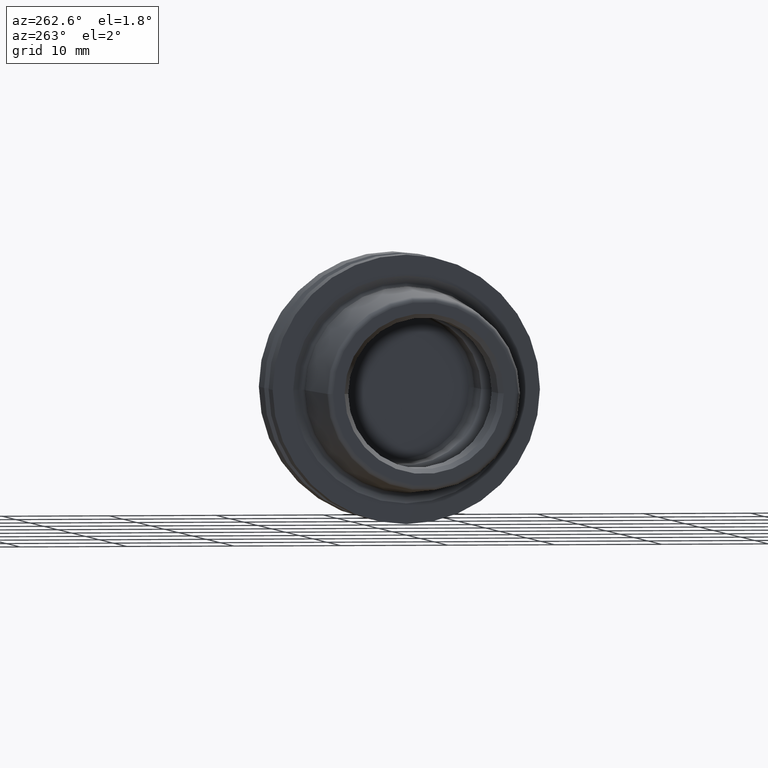
[diagram: clean part render]
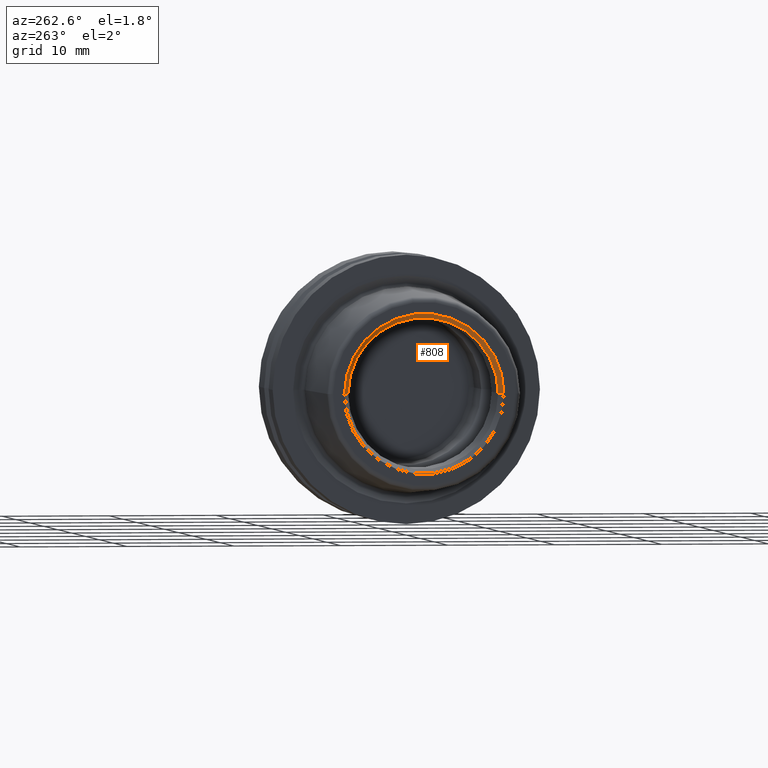
[diagram: same view with one face highlighted and labeled with its STEP entity id]
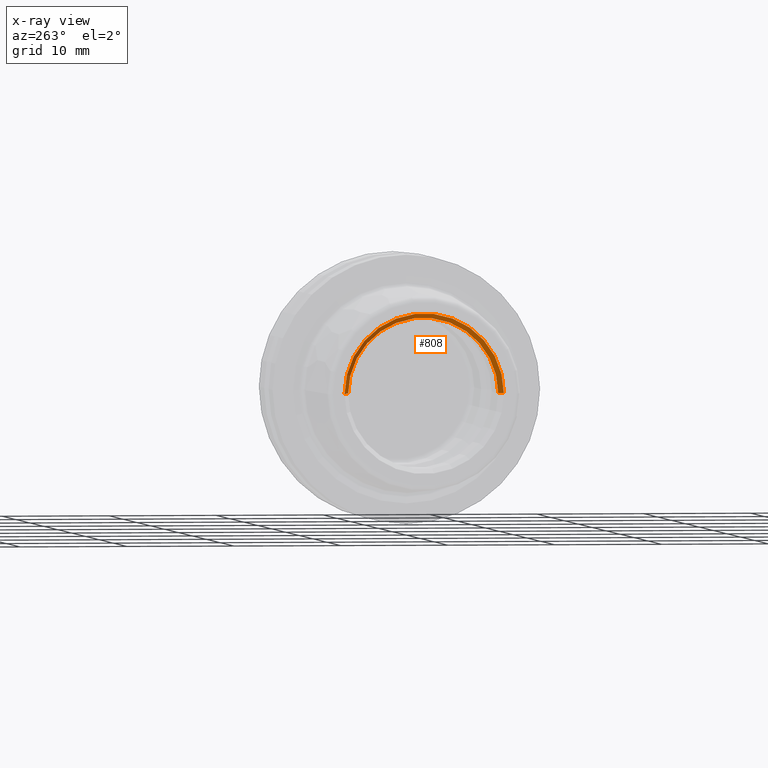
[diagram: x-ray of the same camera — body ghosted, the highlighted face saturated]
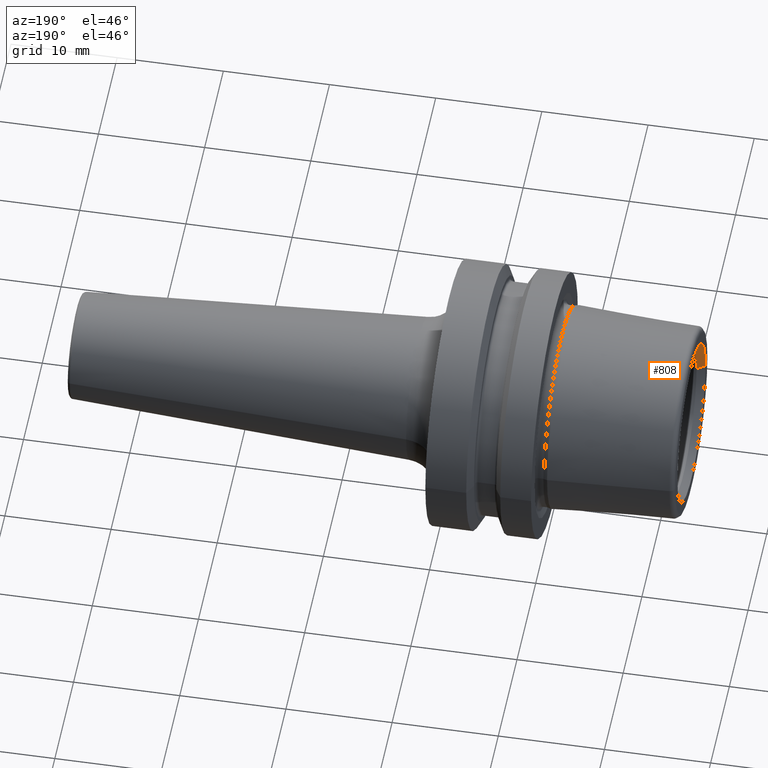
[diagram: same view with one face highlighted and labeled with its STEP entity id]
A machine part, auxiliary view. The second image highlights one B-rep face of the part: STEP entity #808.
The next image is the same camera in x-ray: the body ghosted, the highlighted face saturated — about 0% of this face is hidden behind the body in this view.
A second angle (auxiliary view) of the same face is appended — the face is thin or edge-on in the first view.
In plain terms, the highlighted conical surface has half-angle 30 deg.
Its self-contained STEP definition (entity closure, byte-faithful):
#68=CARTESIAN_POINT('',(-1.29E1,0.E0,0.E0));
#69=DIRECTION('',(1.E0,0.E0,0.E0));
#70=DIRECTION('',(0.E0,1.E0,0.E0));
#71=AXIS2_PLACEMENT_3D('',#68,#69,#70);
#78=CARTESIAN_POINT('',(-1.215E1,0.E0,0.E0));
#79=DIRECTION('',(1.E0,0.E0,0.E0));
#80=DIRECTION('',(0.E0,1.E0,0.E0));
#81=AXIS2_PLACEMENT_3D('',#78,#79,#80);
#83=DIRECTION('',(-8.660254037844E-1,5.E-1,0.E0));
#84=VECTOR('',#83,8.660254037844E-1);
#85=CARTESIAN_POINT('',(-1.215E1,7.0175E0,0.E0));
#86=LINE('',#85,#84);
#92=DIRECTION('',(-8.660254037844E-1,-5.E-1,0.E0));
#93=VECTOR('',#92,8.660254037844E-1);
#94=CARTESIAN_POINT('',(-1.215E1,-7.0175E0,0.E0));
#95=LINE('',#94,#93);
#650=CARTESIAN_POINT('',(-1.215E1,7.0175E0,0.E0));
#651=VERTEX_POINT('',#650);
#662=CARTESIAN_POINT('',(-1.215E1,-7.0175E0,0.E0));
#663=VERTEX_POINT('',#662);
#664=CARTESIAN_POINT('',(-1.29E1,7.450512701892E0,0.E0));
#665=VERTEX_POINT('',#664);
#666=CARTESIAN_POINT('',(-1.29E1,-7.450512701892E0,0.E0));
#667=VERTEX_POINT('',#666);
#794=CARTESIAN_POINT('',(-1.2525E1,0.E0,0.E0));
#795=DIRECTION('',(-1.E0,0.E0,0.E0));
#796=DIRECTION('',(0.E0,1.E0,0.E0));
#797=AXIS2_PLACEMENT_3D('',#794,#795,#796);
#798=CONICAL_SURFACE('',#797,7.234006350946E0,3.E1);
#800=ORIENTED_EDGE('',*,*,#799,.T.);
#801=ORIENTED_EDGE('',*,*,#787,.T.);
#803=ORIENTED_EDGE('',*,*,#802,.F.);
#805=ORIENTED_EDGE('',*,*,#804,.F.);
#806=EDGE_LOOP('',(#800,#801,#803,#805));
#807=FACE_OUTER_BOUND('',#806,.F.);
#808=ADVANCED_FACE('',(#807),#798,.F.);
#72=CIRCLE('',#71,7.450512701892E0);
#82=CIRCLE('',#81,7.0175E0);
#787=EDGE_CURVE('',#665,#667,#72,.T.);
#799=EDGE_CURVE('',#651,#665,#86,.T.);
#802=EDGE_CURVE('',#663,#667,#95,.T.);
#804=EDGE_CURVE('',#651,#663,#82,.T.);